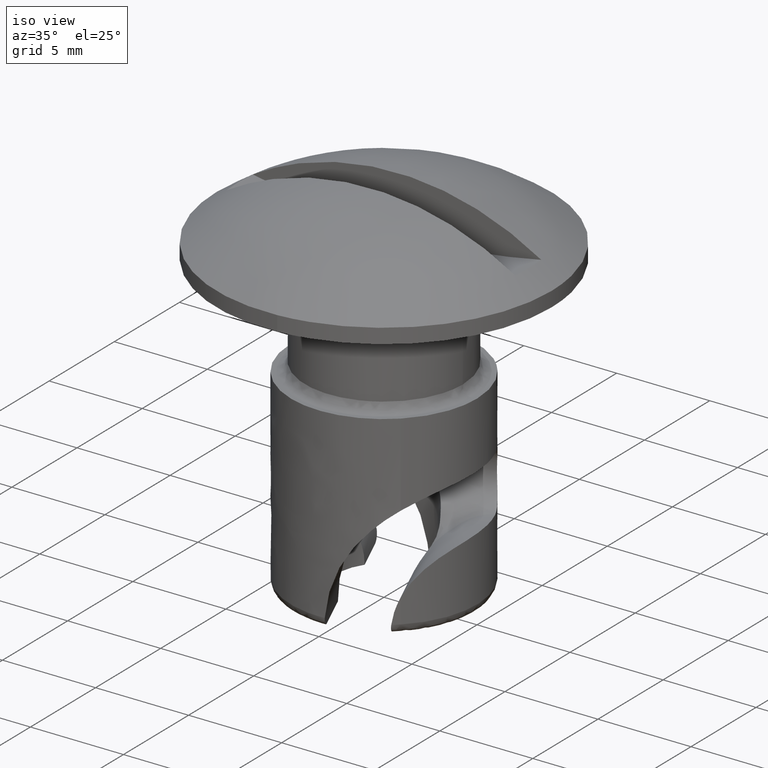
[diagram: clean part render]
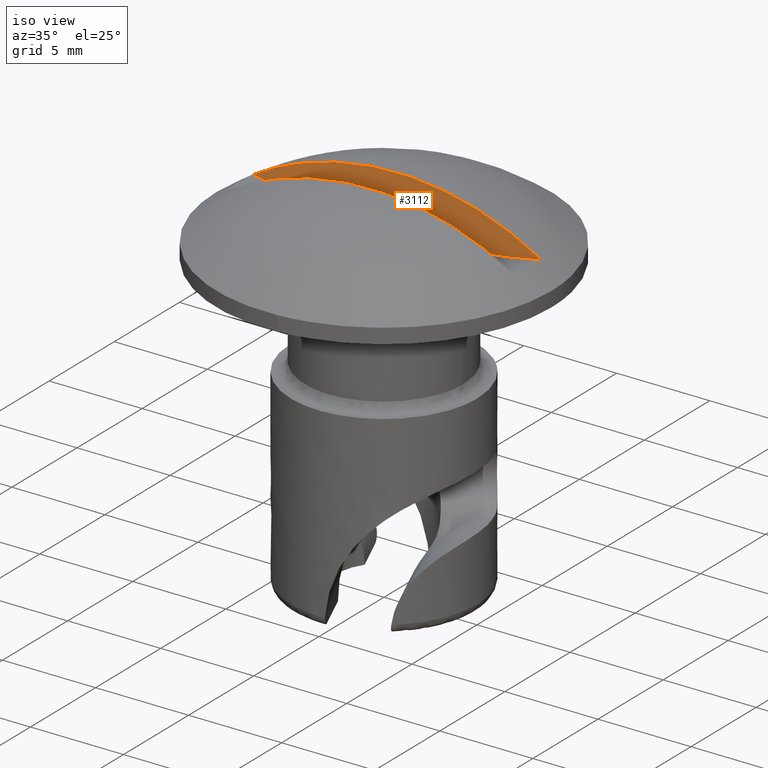
[diagram: same view with one face highlighted and labeled with its STEP entity id]
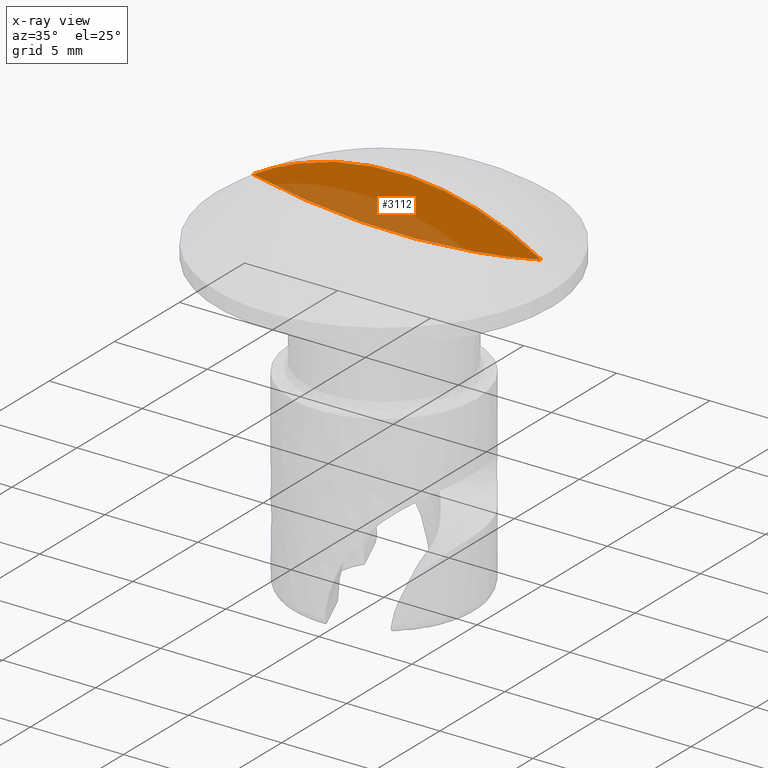
[diagram: x-ray of the same camera — body ghosted, the highlighted face saturated]
A machine part, iso view. The second image highlights one B-rep face of the part: STEP entity #3112.
The next image is the same camera in x-ray: the body ghosted, the highlighted face saturated — about 30% of this face is hidden behind the body in this view.
In plain terms, the highlighted face is a freeform B-spline surface patch.
Its self-contained STEP definition (entity closure, byte-faithful):
#3075=CARTESIAN_POINT('',(-8.531151693891998,1.0,3.914824226066727));
#3076=CARTESIAN_POINT('',(8.531152109972224,1.0,3.914824226066727));
#3077=CARTESIAN_POINT('',(-8.531151693891998,1.0,0.651819374076843));
#3078=CARTESIAN_POINT('',(8.531152109972224,1.0,0.651819374076843));
#3079=B_SPLINE_SURFACE_WITH_KNOTS('',1,1,((#3075,#3077),(#3076,#3078)),.UNSPECIFIED.,.F.,.F.,.U.,(2,2),(2,2),(0.0,17.062303803864221),(0.0,3.263004851989884),.UNSPECIFIED.);
#3080=CARTESIAN_POINT('',(7.756297594288951,1.0,1.600005047999795));
#3081=VERTEX_POINT('',#3080);
#3082=CARTESIAN_POINT('',(-7.756297594288951,1.0,1.600005047999795));
#3083=VERTEX_POINT('',#3082);
#3084=CARTESIAN_POINT('',(7.756297594288951,1.0,1.600005047999783));
#3085=CARTESIAN_POINT('',(3.469447E-015,1.0,6.300019137504304));
#3086=CARTESIAN_POINT('',(-7.756297594288944,1.0,1.600005047999785));
#3094=(BOUNDED_CURVE()B_SPLINE_CURVE(2,(#3084,#3085,#3086),.UNSPECIFIED.,.F.,.U.)CURVE()GEOMETRIC_REPRESENTATION_ITEM()QUASI_UNIFORM_CURVE()RATIONAL_B_SPLINE_CURVE((1.0,0.855235576435009,1.0))REPRESENTATION_ITEM(''));
#3095=EDGE_CURVE('',#3081,#3083,#3094,.T.);
#3096=ORIENTED_EDGE('',*,*,#3095,.T.);
#3097=CARTESIAN_POINT('',(-7.756297594288955,1.0,1.600005047999786));
#3098=CARTESIAN_POINT('',(-1.127570E-014,1.000000000000000,-0.017203438108147));
#3099=CARTESIAN_POINT('',(7.756297594288945,1.0,1.600005047999786));
#3107=(BOUNDED_CURVE()B_SPLINE_CURVE(2,(#3097,#3098,#3099),.UNSPECIFIED.,.F.,.U.)CURVE()GEOMETRIC_REPRESENTATION_ITEM()QUASI_UNIFORM_CURVE()RATIONAL_B_SPLINE_CURVE((1.0,0.978947314526324,1.0))REPRESENTATION_ITEM(''));
#3108=EDGE_CURVE('',#3083,#3081,#3107,.T.);
#3109=ORIENTED_EDGE('',*,*,#3108,.T.);
#3110=EDGE_LOOP('',(#3096,#3109));
#3111=FACE_OUTER_BOUND('',#3110,.T.);
#3112=ADVANCED_FACE('',(#3111),#3079,.F.);